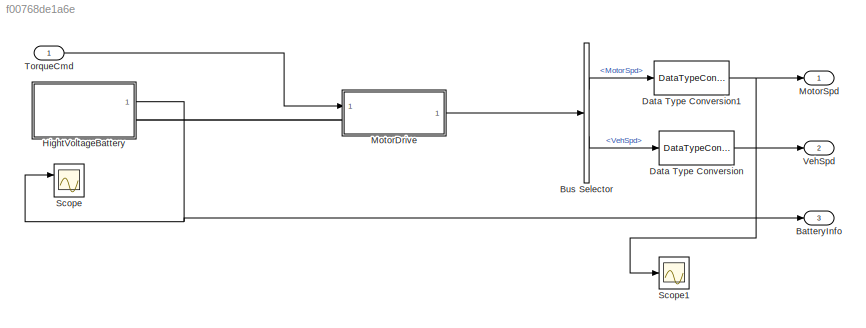
MODEL slx_f00768de1a6e
KIND model
CONFIG AbsTol = auto
CONFIG EnableMultiTasking = off
CONFIG FixedStep = ContIntTime
CONFIG MaxStep = auto
CONFIG MinStep = auto
CONFIG RelTol = 1e-3
CONFIG SampleTimeConstraint = Unconstrained
CONFIG SolverName = ode1be
CONFIG StartTime = 0.0
CONFIG StopTime = 10.0
BLOCK [Outport] BatteryInfo
  OutDataTypeStr = Bus: BatteryInfo
  Port = 3
BLOCK [BusSelector] Bus Selector
  OutputSignals = MotorSpd,VehSpd
  Ports = [1, 2]
BLOCK [DataTypeConversion] Data Type Conversion
  OutDataTypeStr = single
  RndMeth = Floor
  SaturateOnIntegerOverflow = off
BLOCK [DataTypeConversion] Data Type Conversion1
  OutDataTypeStr = single
  RndMeth = Floor
  SaturateOnIntegerOverflow = off
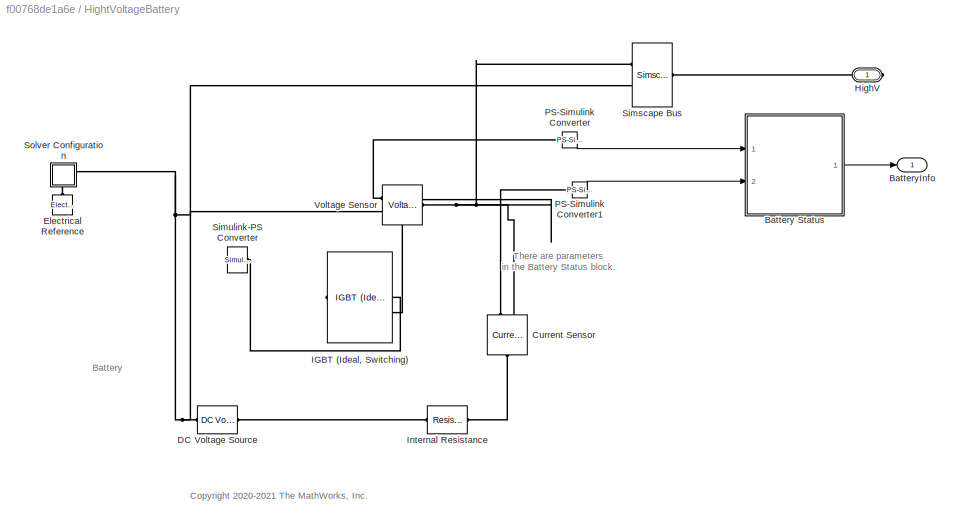
BLOCK [SubSystem] HightVoltageBattery
  Ports = [0, 1, 0, 0, 0, 0, 1]
  RequestExecContextInheritance = off
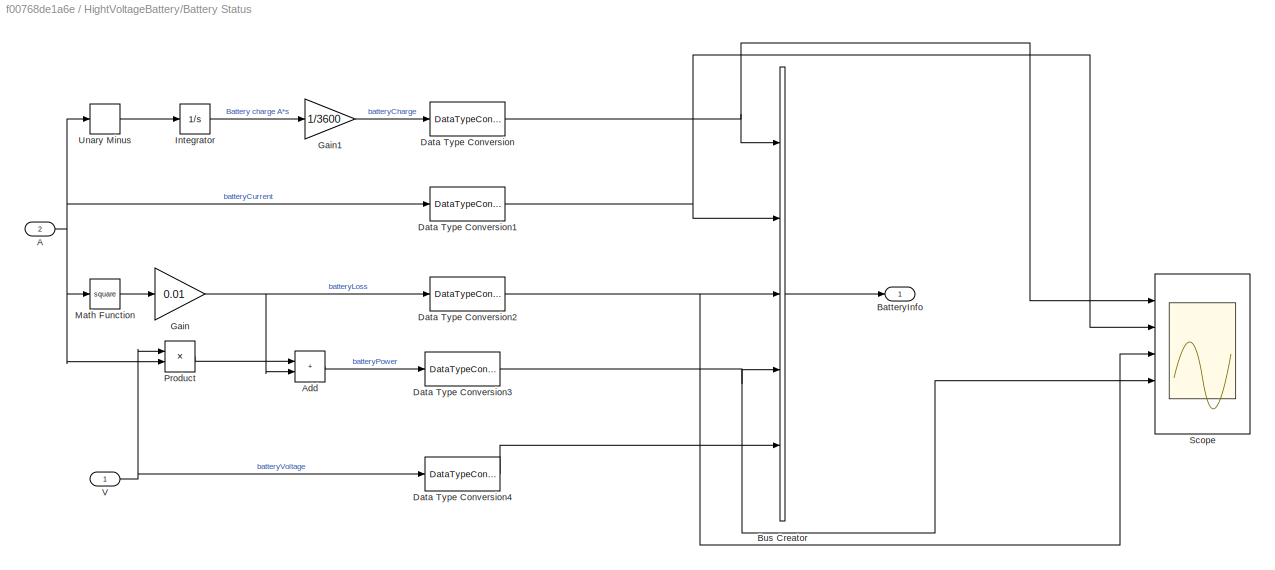
BLOCK [SubSystem] HightVoltageBattery/Battery Status
  Ports = [2, 1]
  RequestExecContextInheritance = off
BLOCK [Inport] HightVoltageBattery/Battery Status/A
  Port = 2
BLOCK [Sum] HightVoltageBattery/Battery Status/Add
  IconShape = rectangular
  Ports = [2, 1]
BLOCK [Outport] HightVoltageBattery/Battery Status/BatteryInfo
  OutDataTypeStr = Bus: BatteryInfo
BLOCK [BusCreator] HightVoltageBattery/Battery Status/Bus Creator
  DisplayOption = bar
  InheritFromInputs = off
  Inputs = 5
  OutDataTypeStr = Bus: BatteryInfo
  Ports = [5, 1]
BLOCK [DataTypeConversion] HightVoltageBattery/Battery Status/Data Type Conversion
  OutDataTypeStr = single
  RndMeth = Floor
  SaturateOnIntegerOverflow = off
BLOCK [DataTypeConversion] HightVoltageBattery/Battery Status/Data Type Conversion1
  OutDataTypeStr = single
  RndMeth = Floor
  SaturateOnIntegerOverflow = off
BLOCK [DataTypeConversion] HightVoltageBattery/Battery Status/Data Type Conversion2
  OutDataTypeStr = single
  RndMeth = Floor
  SaturateOnIntegerOverflow = off
BLOCK [DataTypeConversion] HightVoltageBattery/Battery Status/Data Type Conversion3
  OutDataTypeStr = single
  RndMeth = Floor
  SaturateOnIntegerOverflow = off
BLOCK [DataTypeConversion] HightVoltageBattery/Battery Status/Data Type Conversion4
  OutDataTypeStr = single
  RndMeth = Floor
  SaturateOnIntegerOverflow = off
BLOCK [Gain] HightVoltageBattery/Battery Status/Gain
  Gain = 0.01
BLOCK [Gain] HightVoltageBattery/Battery Status/Gain1
  Gain = 1/3600
BLOCK [Integrator] HightVoltageBattery/Battery Status/Integrator
  InitialCondition = nominalCapacity_kWh/packVoltage_V*1000*hvBatterySOC_pct/100*3600
  Ports = [1, 1]
BLOCK [Math] HightVoltageBattery/Battery Status/Math Function
  Operator = square
  Ports = [1, 1]
BLOCK [Product] HightVoltageBattery/Battery Status/Product
  Ports = [2, 1]
BLOCK [Scope] HightVoltageBattery/Battery Status/Scope
  Floating = off
  NumInputPorts = 5
  Ports = [5]
  ScopeSpecificationString = Simulink.scopes.TimeScopeBlockCfg('CurrentConfiguration', extmgr.ConfigurationSet(extmgr.Configuration('Core','General UI',true),extmgr.Configuration('Core','Source UI',true),extmgr.Configuration('Sources','WiredSimulink',true),extmgr.Configuration('Visuals','Time Domain',true,'SerializedDisplays',{struct('MinYLimReal','4.95621','MaxYLimReal','8.3382','YLabelReal','','MinYLimMag','4.95621','MaxYLi...<+3487ch>
BLOCK [UnaryMinus] HightVoltageBattery/Battery Status/Unary Minus
BLOCK [Inport] HightVoltageBattery/Battery Status/V
BLOCK [Outport] HightVoltageBattery/BatteryInfo
BLOCK [Reference] HightVoltageBattery/Current Sensor  REF=fl_lib/Electrical/Electrical Sensors/Current Sensor
  NameLocation = left
  Ports = [0, 0, 0, 0, 0, 1, 2]
  SourceBlock = fl_lib/Electrical/Electrical Sensors/Current Sensor
  SourceProductBaseCode = SS
  SourceType = Current Sensor
BLOCK [Reference] HightVoltageBattery/DC Voltage Source  REF=fl_lib/Electrical/Electrical Sources/DC Voltage Source
  AttributesFormatString = %<v0> [%<v0_unit>]
  Ports = [0, 0, 0, 0, 0, 1, 1]
  SourceBlock = fl_lib/Electrical/Electrical Sources/DC Voltage Source
  SourceProductBaseCode = SS
  SourceType = DC Voltage Source
BLOCK [Reference] HightVoltageBattery/Electrical Reference  REF=fl_lib/Electrical/Electrical Elements/Electrical Reference
  NameLocation = right
  Ports = [0, 0, 0, 0, 0, 1]
  SourceBlock = fl_lib/Electrical/Electrical Elements/Electrical Reference
  SourceProductBaseCode = SS
  SourceType = Electrical Reference
BLOCK [PMIOPort] HightVoltageBattery/HighV
  Side = Right
BLOCK [Reference] HightVoltageBattery/IGBT (Ideal, Switching)  REF=ee_lib/Semiconductors &
Converters/IGBT
(Ideal,
Switching)
  Commented = on
  NameLocation = top
  Ports = [0, 0, 0, 0, 0, 1, 2]
  SourceBlock = ee_lib/Semiconductors &\nConverters/IGBT\n(Ideal,\nSwitching)
  SourceProductBaseCode = PS
  SourceType = IGBT\n(Ideal,\nSwitching)
BLOCK [Reference] HightVoltageBattery/Internal Resistance  REF=fl_lib/Electrical/Electrical Elements/Resistor
  AttributesFormatString = %<R> [%<R_unit>]
  Ports = [0, 0, 0, 0, 0, 1, 1]
  SourceBlock = fl_lib/Electrical/Electrical Elements/Resistor
  SourceProductBaseCode = SS
  SourceType = Resistor
BLOCK [Reference] HightVoltageBattery/PS-Simulink Converter  REF=nesl_utility/PS-Simulink
Converter
  Ports = [0, 1, 0, 0, 0, 1]
  SourceBlock = nesl_utility/PS-Simulink\nConverter
  SourceProductBaseCode = SS
  SourceType = PS-Simulink\nConverter
BLOCK [Reference] HightVoltageBattery/PS-Simulink Converter1  REF=nesl_utility/PS-Simulink
Converter
  Ports = [0, 1, 0, 0, 0, 1]
  SourceBlock = nesl_utility/PS-Simulink\nConverter
  SourceProductBaseCode = SS
  SourceType = PS-Simulink\nConverter
BLOCK [SimscapeBus] HightVoltageBattery/Simscape Bus
  HierarchyStrings = plus;minus
  Ports = [0, 0, 0, 0, 0, 2, 1]
BLOCK [Reference] HightVoltageBattery/Simulink-PS Converter  REF=nesl_utility/Simulink-PS
Converter
  AttributesFormatString = %<Unit>
  Commented = on
  NameLocation = top
  Ports = [1, 0, 0, 0, 0, 0, 1]
  SourceBlock = nesl_utility/Simulink-PS\nConverter
  SourceProductBaseCode = SS
  SourceType = Simulink-PS\nConverter
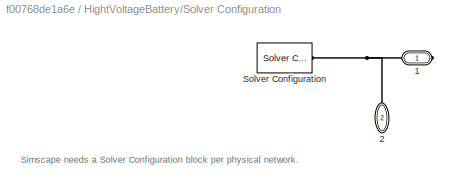
BLOCK [SubSystem] HightVoltageBattery/Solver Configuration
  NameLocation = top
  PortSchema = {"entries":[{"content":{"sides":[{"content":{"connectorIds":[]},"type":"ConnectorPlacement.EquallySpacedRectSide","uuid":"4a7e26c2-e9e9-4fea-b605-533b1a682be7"},{"content":{"connectorIds":["RConn1"],"side":"RIGHT"},"type":"ConnectorPlacement.EquallySpacedRectSide","uuid":"0210e324-555e-4372-b836-fcc8ab23e933"},{"content":{"connectorIds":[],"side":"TOP"},"type":"ConnectorPlacement.EquallySpacedRect...<+391ch>
  Ports = [0, 0, 0, 0, 0, 0, 2]
  RequestExecContextInheritance = off
  ShowPortLabels = none
BLOCK [PMIOPort] HightVoltageBattery/Solver Configuration/1
  Side = Right
BLOCK [PMIOPort] HightVoltageBattery/Solver Configuration/2
  NameLocation = left
  Port = 2
  Side = Right
BLOCK [Reference] HightVoltageBattery/Solver Configuration/Solver Configuration  REF=nesl_utility/Solver
Configuration
  AttributesFormatString = Local solver %<UseLocalSolver>
  Ports = [0, 0, 0, 0, 0, 0, 1]
  SourceBlock = nesl_utility/Solver\nConfiguration
  SourceProductBaseCode = SS
  SourceType = Solver\nConfiguration
BLOCK [Reference] HightVoltageBattery/Voltage Sensor  REF=fl_lib/Electrical/Electrical Sensors/Voltage Sensor
  Ports = [0, 0, 0, 0, 0, 1, 2]
  SourceBlock = fl_lib/Electrical/Electrical Sensors/Voltage Sensor
  SourceProductBaseCode = SS
  SourceType = Voltage Sensor
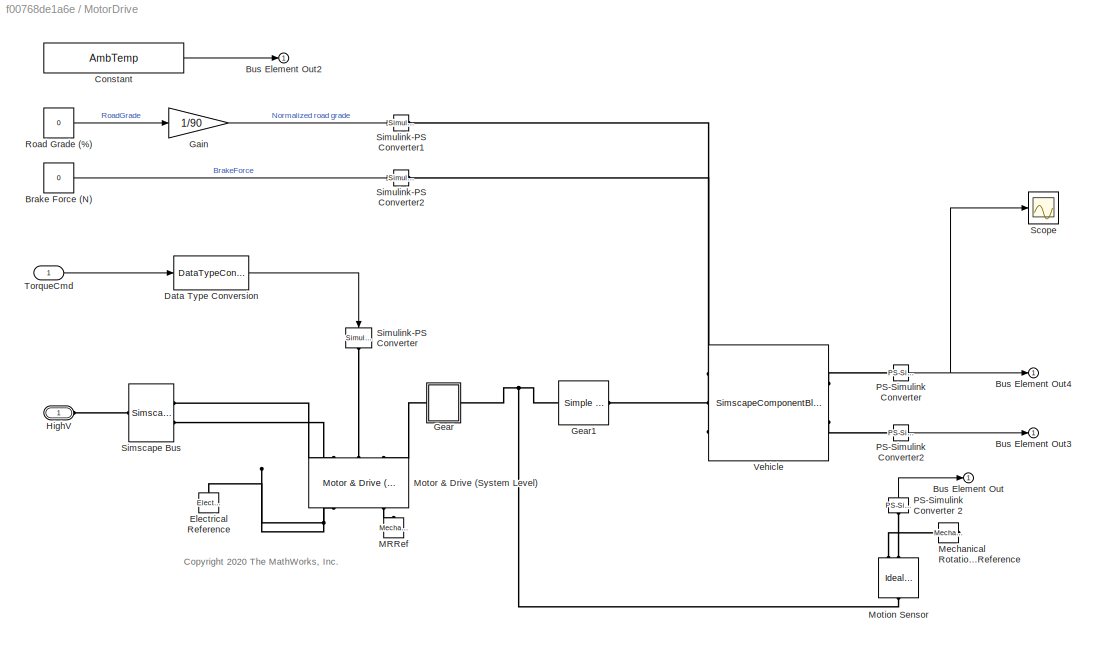
BLOCK [SubSystem] MotorDrive
  Ports = [1, 1, 0, 0, 0, 1]
  RequestExecContextInheritance = off
BLOCK [SimscapeBus] MotorDrive/ Simscape Bus
  HierarchyStrings = plus;minus
  Ports = [0, 0, 0, 0, 0, 2, 1]
BLOCK [Constant] MotorDrive/Brake Force (N)
  Value = 0
BLOCK [Outport] MotorDrive/Bus Element Out
  AttributesFormatString = %<Unit>
BLOCK [Outport] MotorDrive/Bus Element Out2
  AttributesFormatString = %<Unit>
BLOCK [Outport] MotorDrive/Bus Element Out3
  AttributesFormatString = %<Unit>
BLOCK [Outport] MotorDrive/Bus Element Out4
  AttributesFormatString = %<Unit>
BLOCK [Constant] MotorDrive/Constant
  Value = AmbTemp
BLOCK [DataTypeConversion] MotorDrive/Data Type Conversion
  OutDataTypeStr = double
  RndMeth = Floor
  SaturateOnIntegerOverflow = off
BLOCK [Reference] MotorDrive/Electrical Reference  REF=fl_lib/Electrical/Electrical Elements/Electrical Reference
  NameLocation = left
  Ports = [0, 0, 0, 0, 0, 1]
  SourceBlock = fl_lib/Electrical/Electrical Elements/Electrical Reference
  SourceProductBaseCode = SS
  SourceType = Electrical Reference
BLOCK [Gain] MotorDrive/Gain
  Gain = 1/90
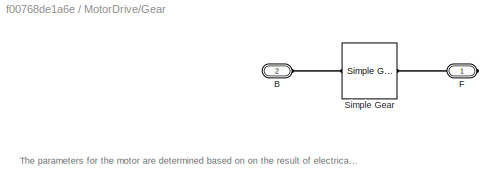
BLOCK [SubSystem] MotorDrive/Gear
  Ports = [0, 0, 0, 0, 0, 1, 1]
  RequestExecContextInheritance = off
BLOCK [PMIOPort] MotorDrive/Gear/B
  Port = 2
  Side = Left
BLOCK [PMIOPort] MotorDrive/Gear/F
  Side = Right
BLOCK [Reference] MotorDrive/Gear/Simple Gear  REF=sdl_lib/Gears/Simple Gear
  AttributesFormatString = %<ratio>
  Ports = [0, 0, 0, 0, 0, 1, 1]
  SourceBlock = sdl_lib/Gears/Simple Gear
  SourceProductBaseCode = LD
  SourceType = Simple Gear
BLOCK [Reference] MotorDrive/Gear1  REF=sdl_lib/Gears/Simple Gear
  AttributesFormatString = %<ratio>
  Ports = [0, 0, 0, 0, 0, 1, 1]
  SourceBlock = sdl_lib/Gears/Simple Gear
  SourceProductBaseCode = LD
  SourceType = Simple Gear
BLOCK [PMIOPort] MotorDrive/HighV
  Side = Left
BLOCK [Reference] MotorDrive/MRRef  REF=fl_lib/Mechanical/Rotational Elements/Mechanical
Rotational Reference
  NameLocation = right
  Ports = [0, 0, 0, 0, 0, 1]
  SourceBlock = fl_lib/Mechanical/Rotational Elements/Mechanical\nRotational Reference
  SourceProductBaseCode = SS
  SourceType = Mechanical\nRotational Reference
BLOCK [Reference] MotorDrive/Mechanical Rotational Reference  REF=fl_lib/Mechanical/Rotational Elements/Mechanical
Rotational Reference
  Ports = [0, 0, 0, 0, 0, 1]
  SourceBlock = fl_lib/Mechanical/Rotational Elements/Mechanical\nRotational Reference
  SourceProductBaseCode = SS
  SourceType = Mechanical\nRotational Reference
BLOCK [Reference] MotorDrive/Motion Sensor  REF=fl_lib/Mechanical/Mechanical Sensors/Ideal Rotational
Motion Sensor
  NameLocation = left
  Ports = [0, 0, 0, 0, 0, 1, 3]
  SourceBlock = fl_lib/Mechanical/Mechanical Sensors/Ideal Rotational\nMotion Sensor
  SourceProductBaseCode = SS
  SourceType = Ideal Rotational\nMotion Sensor
BLOCK [Reference] MotorDrive/Motor & Drive (System Level)  REF=ee_lib/Electromechanical/Motor & Drive
(System Level)
  NameLocation = right
  Ports = [0, 0, 0, 0, 0, 3, 3]
  SourceBlock = ee_lib/Electromechanical/Motor & Drive\n(System Level)
  SourceProductBaseCode = PS
  SourceType = Motor & Drive\n(System Level)
BLOCK [Reference] MotorDrive/PS-Simulink Converter  REF=nesl_utility/PS-Simulink
Converter
  AttributesFormatString = %<Unit>
  Ports = [0, 1, 0, 0, 0, 1]
  SourceBlock = nesl_utility/PS-Simulink\nConverter
  SourceProductBaseCode = SS
  SourceType = PS-Simulink\nConverter
BLOCK [Reference] MotorDrive/PS-Simulink Converter 2  REF=nesl_utility/PS-Simulink
Converter
  AttributesFormatString = %<Unit>
  NameLocation = right
  Ports = [0, 1, 0, 0, 0, 1]
  SourceBlock = nesl_utility/PS-Simulink\nConverter
  SourceProductBaseCode = SS
  SourceType = PS-Simulink\nConverter
BLOCK [Reference] MotorDrive/PS-Simulink Converter2  REF=nesl_utility/PS-Simulink
Converter
  AttributesFormatString = %<Unit>
  Ports = [0, 1, 0, 0, 0, 1]
  SourceBlock = nesl_utility/PS-Simulink\nConverter
  SourceProductBaseCode = SS
  SourceType = PS-Simulink\nConverter
BLOCK [Constant] MotorDrive/Road Grade (%)
  Value = 0
BLOCK [Scope] MotorDrive/Scope
  Floating = off
  NumInputPorts = 1
  Ports = [1]
  ScopeSpecificationString = Simulink.scopes.TimeScopeBlockCfg('CurrentConfiguration', extmgr.ConfigurationSet(extmgr.Configuration('Core','General UI',true),extmgr.Configuration('Core','Source UI',true),extmgr.Configuration('Sources','WiredSimulink',true,'DataLoggingVariableName','ScopeData1'),extmgr.Configuration('Visuals','Time Domain',true,'SerializedDisplays',{struct('MinYLimReal','-27.86125','MaxYLimReal','250.75125','Y...<+1467ch>
BLOCK [Reference] MotorDrive/Simulink-PS Converter  REF=nesl_utility/Simulink-PS
Converter
  AttributesFormatString = %<Unit>
  NameLocation = right
  Ports = [1, 0, 0, 0, 0, 0, 1]
  SourceBlock = nesl_utility/Simulink-PS\nConverter
  SourceProductBaseCode = SS
  SourceType = Simulink-PS\nConverter
BLOCK [Reference] MotorDrive/Simulink-PS Converter1  REF=nesl_utility/Simulink-PS
Converter
  AttributesFormatString = %<Unit>
  Ports = [1, 0, 0, 0, 0, 0, 1]
  SourceBlock = nesl_utility/Simulink-PS\nConverter
  SourceProductBaseCode = SS
  SourceType = Simulink-PS\nConverter
BLOCK [Reference] MotorDrive/Simulink-PS Converter2  REF=nesl_utility/Simulink-PS
Converter
  AttributesFormatString = %<Unit>
  Ports = [1, 0, 0, 0, 0, 0, 1]
  SourceBlock = nesl_utility/Simulink-PS\nConverter
  SourceProductBaseCode = SS
  SourceType = Simulink-PS\nConverter
BLOCK [Inport] MotorDrive/TorqueCmd
  AttributesFormatString = %<Unit>
  NameLocation = left
  OutDataTypeStr = single
  Unit = N*m
BLOCK [SimscapeComponentBlock] MotorDrive/Vehicle
  A_rl = vehicleRoadLoadA_N
  A_rl_conf = compiletime
  A_rl_unit = N
  B_rl = vehicleRoadLoadB_N_per_kph
  B_rl_conf = compiletime
  B_rl_unit = N*hr/km
  C_rl = vehicleRoadLoadB_N_per_kph2
  C_rl_conf = compiletime
  C_rl_unit = N*hr^2/km^2
  ClassName = Vehicle1DBasic
  ComponentPath = Vehicle1DBasic
  ComponentVariantNames = ["Vehicle1DBasic"]
  ComponentVariants = ["Vehicle1DBasic"]
  CopyFcn = simscape.engine.sli.internal.componentblockcallback(gcbh,'COPY')
  InternalSimscapePortConfiguration = {"Bottom":[],"Left":[{"id":"Axle","label":"Axle","type":"foundation.mechanical.rotational.rotational"}],"Right":[{"id":"v_out","label":"V","type":"output"},{"id":"G","label":"G","type":"output"}],"Top":[{"id":"brkF","label":"Brake","type":"input"},{"id":"grade_norm","label":"Grade","type":"input"}]}
  M_e = vehicleVehMass_kg
  M_e_conf = compiletime
  M_e_unit = kg
  MaskType = Vehicle 1D Basic
  Ports = [0, 0, 0, 0, 0, 3, 2]
  PreCopyFcn = simscape.engine.sli.internal.componentblockcallback(gcbh,'PRECOPY')
  PreDeleteFcn = simscape.engine.sli.internal.componentblockcallback(gcbh,'PREDELETE')
  R_tire = vehicleTireRollingRadius_cm
  R_tire_conf = compiletime
  R_tire_unit = cm
  SchemaVersion = 1
  ShowBrakeIn = simscape.enum.onoff.on
  ShowBrakeIn_conf = compiletime
  ShowBrakeIn_unit = 1
  ShowGOut = simscape.enum.onoff.on
  ShowGOut_conf = compiletime
  ShowGOut_unit = 1
  ShowGradeIn = simscape.enum.onoff.on
  ShowGradeIn_conf = compiletime
  ShowGradeIn_unit = 1
  ShowVelOut = simscape.enum.onoff.on
  ShowVelOut_conf = compiletime
  ShowVelOut_unit = 1
  SourceFile = Vehicle1DBasic
  grav = 9.81
  grav_conf = compiletime
  grav_unit = m/s^2
  v = 0
  v_nominal_specify = off
  v_nominal_unit = km/hr
  v_nominal_value = 1
  v_priority = High
  v_specify = off
  v_unit = km/hr
BLOCK [Outport] MotorSpd
  OutDataTypeStr = single
BLOCK [Scope] Scope
  Floating = off
  NumInputPorts = 2
  Ports = [2]
  ScopeSpecificationString = Simulink.scopes.TimeScopeBlockCfg('CurrentConfiguration', extmgr.ConfigurationSet(extmgr.Configuration('Core','General UI',true),extmgr.Configuration('Core','Source UI',true),extmgr.Configuration('Sources','WiredSimulink',true,'DataLoggingVariableName','ScopeData1'),extmgr.Configuration('Visuals','Time Domain',true,'SerializedDisplays',{struct('MinYLimReal','-43.75','MaxYLimReal','393.75','YLabelR...<+1645ch>
BLOCK [Scope] Scope1
  Floating = off
  NumInputPorts = 1
  Ports = [1]
  ScopeSpecificationString = Simulink.scopes.TimeScopeBlockCfg('CurrentConfiguration', extmgr.ConfigurationSet(extmgr.Configuration('Core','General UI',true),extmgr.Configuration('Core','Source UI',true),extmgr.Configuration('Sources','WiredSimulink',true,'DataLoggingVariableName','ScopeData1'),extmgr.Configuration('Visuals','Time Domain',true,'SerializedDisplays',{struct('MinYLimReal','-1876.83032','MaxYLimReal','16891.4729'...<+1450ch>
BLOCK [Inport] TorqueCmd
  OutDataTypeStr = single
BLOCK [Outport] VehSpd
  OutDataTypeStr = single
  Port = 2
ANNOTATION HightVoltageBattery: <copyright redacted>
ANNOTATION HightVoltageBattery: Battery
ANNOTATION HightVoltageBattery: There are parameters in the Battery Status block.
ANNOTATION HightVoltageBattery/Solver Configuration: Simscape needs a Solver Configuration block per physical network.
ANNOTATION MotorDrive: <copyright redacted>
ANNOTATION MotorDrive/Gear: The parameters for the motor are determined based on on the result of electrical loss analysis using FEM-Parameterized PMSM block. However, the analysis was performed for a limited speed range due to the lack of enough data to cover the typical speed range for BEV motors. This gear is used to compenstate this issue. Remove this block if you have motor parameters which can cover the entire motor op...<+14ch>
LINE Bus Selector:1 -> Data Type Conversion1:1
LINE Bus Selector:2 -> Data Type Conversion:1
NET Data Type Conversion1:1 -> MotorSpd:1, Scope1:1
LINE Data Type Conversion:1 -> VehSpd:1
NET HightVoltageBattery/Battery Status/A:1 -> HightVoltageBattery/Battery Status/Data Type Conversion1:1, HightVoltageBattery/Battery Status/Math Function:1, HightVoltageBattery/Battery Status/Product:2, HightVoltageBattery/Battery Status/Unary Minus:1
LINE HightVoltageBattery/Battery Status/Add:1 -> HightVoltageBattery/Battery Status/Data Type Conversion3:1
LINE HightVoltageBattery/Battery Status/Bus Creator:1 -> HightVoltageBattery/Battery Status/BatteryInfo:1
NET HightVoltageBattery/Battery Status/Data Type Conversion1:1 -> HightVoltageBattery/Battery Status/Bus Creator:2, HightVoltageBattery/Battery Status/Scope:2
NET HightVoltageBattery/Battery Status/Data Type Conversion2:1 -> HightVoltageBattery/Battery Status/Bus Creator:3, HightVoltageBattery/Battery Status/Scope:3
NET HightVoltageBattery/Battery Status/Data Type Conversion3:1 -> HightVoltageBattery/Battery Status/Bus Creator:4, HightVoltageBattery/Battery Status/Scope:4
LINE HightVoltageBattery/Battery Status/Data Type Conversion4:1 -> HightVoltageBattery/Battery Status/Bus Creator:5
NET HightVoltageBattery/Battery Status/Data Type Conversion:1 -> HightVoltageBattery/Battery Status/Bus Creator:1, HightVoltageBattery/Battery Status/Scope:1
LINE HightVoltageBattery/Battery Status/Gain1:1 -> HightVoltageBattery/Battery Status/Data Type Conversion:1
NET HightVoltageBattery/Battery Status/Gain:1 -> HightVoltageBattery/Battery Status/Add:2, HightVoltageBattery/Battery Status/Data Type Conversion2:1
LINE HightVoltageBattery/Battery Status/Integrator:1 -> HightVoltageBattery/Battery Status/Gain1:1
LINE HightVoltageBattery/Battery Status/Math Function:1 -> HightVoltageBattery/Battery Status/Gain:1
LINE HightVoltageBattery/Battery Status/Product:1 -> HightVoltageBattery/Battery Status/Add:1
LINE HightVoltageBattery/Battery Status/Unary Minus:1 -> HightVoltageBattery/Battery Status/Integrator:1
NET HightVoltageBattery/Battery Status/V:1 -> HightVoltageBattery/Battery Status/Data Type Conversion4:1, HightVoltageBattery/Battery Status/Product:1
LINE HightVoltageBattery/Battery Status:1 -> HightVoltageBattery/BatteryInfo:1
LINE HightVoltageBattery/PS-Simulink Converter1:1 -> HightVoltageBattery/Battery Status:2
LINE HightVoltageBattery/PS-Simulink Converter:1 -> HightVoltageBattery/Battery Status:1
NET HightVoltageBattery:1 -> BatteryInfo:1, Scope:1
LINE MotorDrive/Brake Force (N):1 -> MotorDrive/Simulink-PS Converter2:1
LINE MotorDrive/Constant:1 -> MotorDrive/Bus Element Out2:1
LINE MotorDrive/Data Type Conversion:1 -> MotorDrive/Simulink-PS Converter:1
LINE MotorDrive/Gain:1 -> MotorDrive/Simulink-PS Converter1:1
LINE MotorDrive/PS-Simulink Converter 2:1 -> MotorDrive/Bus Element Out:1
LINE MotorDrive/PS-Simulink Converter2:1 -> MotorDrive/Bus Element Out3:1
NET MotorDrive/PS-Simulink Converter:1 -> MotorDrive/Bus Element Out4:1, MotorDrive/Scope:1
LINE MotorDrive/Road Grade (%):1 -> MotorDrive/Gain:1
LINE MotorDrive/TorqueCmd:1 -> MotorDrive/Data Type Conversion:1
LINE MotorDrive:1 -> Bus Selector:1
LINE TorqueCmd:1 -> MotorDrive:1
PLINE HightVoltageBattery/Current Sensor:LConn1 -- HightVoltageBattery/Internal Resistance:RConn1
PLINE HightVoltageBattery/Current Sensor:RConn1 -- HightVoltageBattery/PS-Simulink Converter1:LConn1
PNET net1: HightVoltageBattery/Current Sensor:RConn2 -- HightVoltageBattery/IGBT (Ideal, Switching):RConn2 -- HightVoltageBattery/Simscape Bus:LConn1 -- HightVoltageBattery/Voltage Sensor:LConn1
PLINE HightVoltageBattery/DC Voltage Source:LConn1 -- HightVoltageBattery/Internal Resistance:LConn1
PNET net2: HightVoltageBattery/DC Voltage Source:RConn1 -- HightVoltageBattery/Simscape Bus:LConn2 -- HightVoltageBattery/Solver Configuration:RConn1 -- HightVoltageBattery/Voltage Sensor:RConn2
PLINE HightVoltageBattery/Electrical Reference:LConn1 -- HightVoltageBattery/Solver Configuration:RConn2
PLINE HightVoltageBattery/HighV:RConn1 -- HightVoltageBattery/Simscape Bus:RConn1
PLINE HightVoltageBattery/IGBT (Ideal, Switching):LConn1 -- HightVoltageBattery/Simulink-PS Converter:RConn1
PLINE HightVoltageBattery/PS-Simulink Converter:LConn1 -- HightVoltageBattery/Voltage Sensor:RConn1
PNET net3: HightVoltageBattery/Solver Configuration/1:RConn1 -- HightVoltageBattery/Solver Configuration/2:RConn1 -- HightVoltageBattery/Solver Configuration/Solver Configuration:RConn1
PLINE HightVoltageBattery:RConn1 -- MotorDrive:LConn1
PLINE MotorDrive/ Simscape Bus:LConn1 -- MotorDrive/Motor & Drive (System Level):LConn1
PNET net4: MotorDrive/ Simscape Bus:LConn2 -- MotorDrive/Electrical Reference:LConn1 -- MotorDrive/Motor & Drive (System Level):RConn1
PLINE MotorDrive/ Simscape Bus:RConn1 -- MotorDrive/HighV:RConn1
PLINE MotorDrive/Gear/B:RConn1 -- MotorDrive/Gear/Simple Gear:LConn1
PLINE MotorDrive/Gear/F:RConn1 -- MotorDrive/Gear/Simple Gear:RConn1
PNET net5: MotorDrive/Gear1:LConn1 -- MotorDrive/Gear:RConn1 -- MotorDrive/Motion Sensor:LConn1
PLINE MotorDrive/Gear1:RConn1 -- MotorDrive/Vehicle:LConn1
PLINE MotorDrive/Gear:LConn1 -- MotorDrive/Motor & Drive (System Level):LConn3
PLINE MotorDrive/MRRef:LConn1 -- MotorDrive/Motor & Drive (System Level):RConn3
PLINE MotorDrive/Mechanical Rotational Reference:LConn1 -- MotorDrive/Motion Sensor:RConn1
PLINE MotorDrive/Motion Sensor:RConn2 -- MotorDrive/PS-Simulink Converter 2:LConn1
PLINE MotorDrive/Motor & Drive (System Level):LConn2 -- MotorDrive/Simulink-PS Converter:RConn1
PLINE MotorDrive/PS-Simulink Converter2:LConn1 -- MotorDrive/Vehicle:RConn2
PLINE MotorDrive/PS-Simulink Converter:LConn1 -- MotorDrive/Vehicle:RConn1
PLINE MotorDrive/Simulink-PS Converter1:RConn1 -- MotorDrive/Vehicle:LConn3
PLINE MotorDrive/Simulink-PS Converter2:RConn1 -- MotorDrive/Vehicle:LConn2
note: NET lines group one-source signal fan-out (src -> all destinations, sorted); 1:1 wires keep LINE; PNET lines group multi-terminal physical nets as a canonical sorted terminal list (undirected conserving connections); 2-terminal nets keep the pairwise PLINE form
